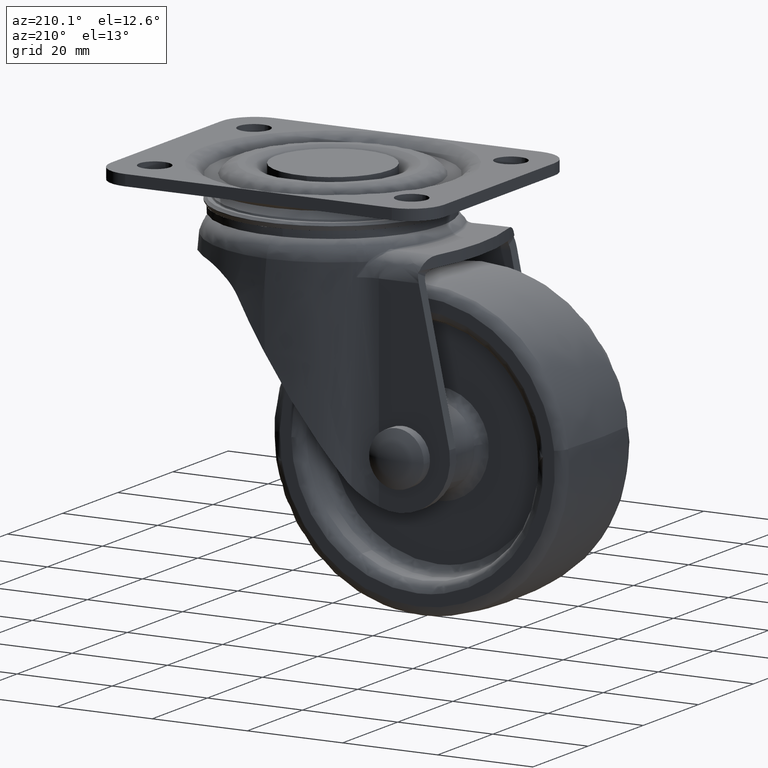
[diagram: clean part render]
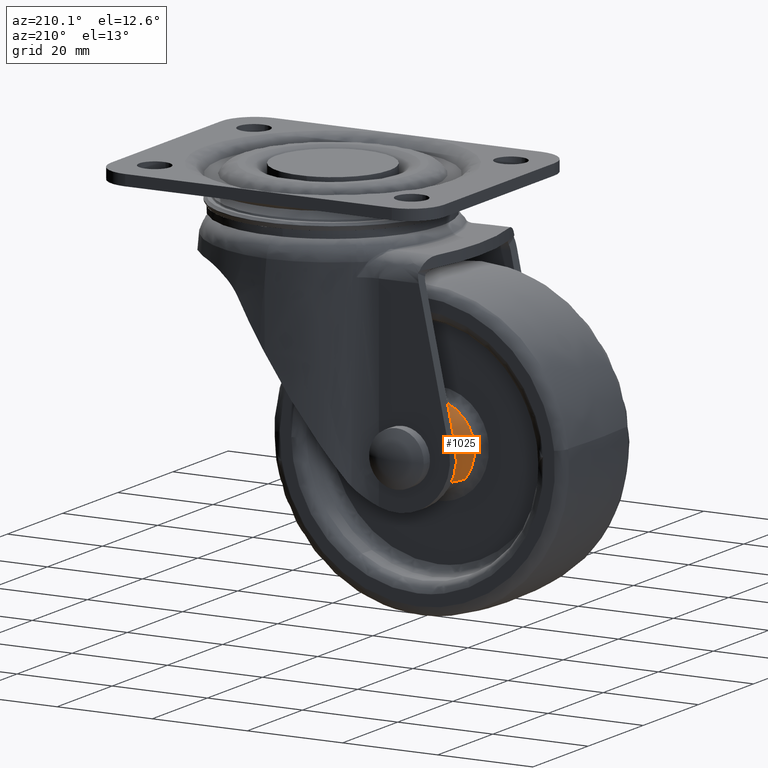
[diagram: same view with one face highlighted and labeled with its STEP entity id]
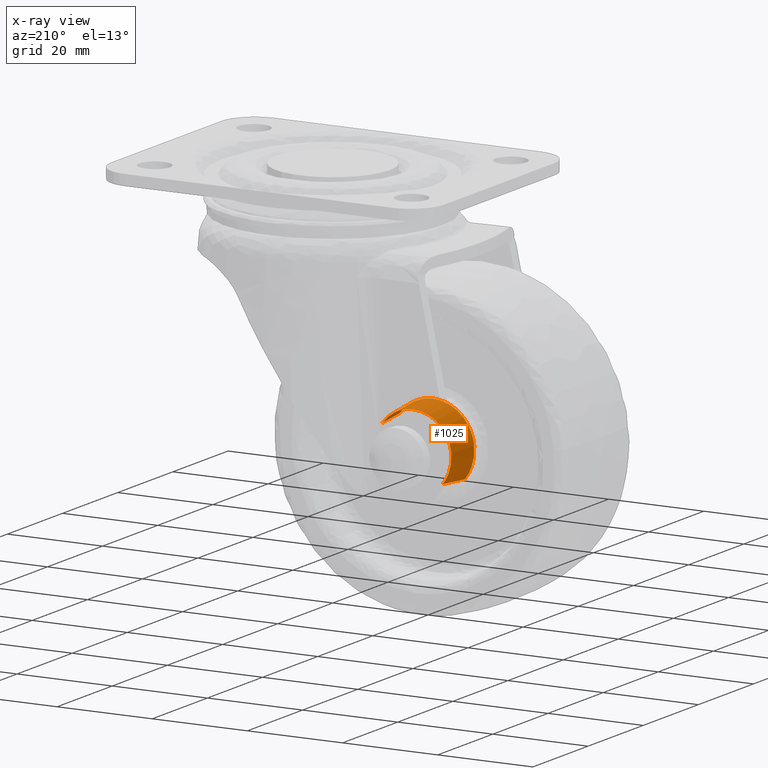
[diagram: x-ray of the same camera — body ghosted, the highlighted face saturated]
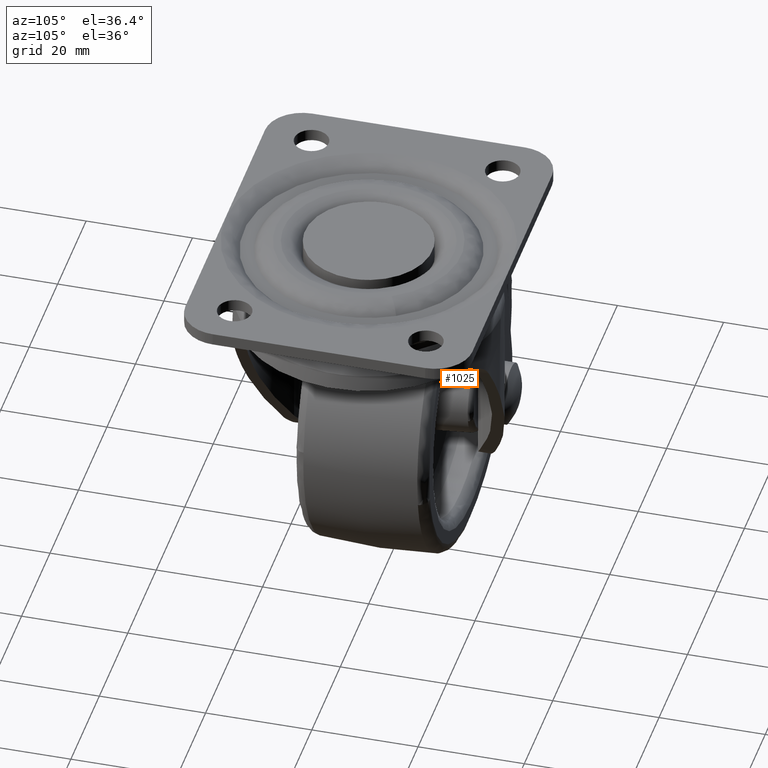
[diagram: same view with one face highlighted and labeled with its STEP entity id]
A machine part, auxiliary view. The second image highlights one B-rep face of the part: STEP entity #1025.
The next image is the same camera in x-ray: the body ghosted, the highlighted face saturated — about 0% of this face is hidden behind the body in this view.
A second angle (auxiliary view) of the same face is appended — the face is thin or edge-on in the first view.
In plain terms, the highlighted face is a freeform B-spline surface patch.
Its self-contained STEP definition (entity closure, byte-faithful):
#798=CARTESIAN_POINT('',(-31.697790052898831,6.825688710400733,-54.076082531766048));
#799=VERTEX_POINT('',#798);
#815=CARTESIAN_POINT('',(-31.209551488260502,14.087155742747459,-53.669605388458280));
#816=VERTEX_POINT('',#815);
#817=CARTESIAN_POINT('',(-31.209551488260502,14.087155742747459,-53.669605388458280));
#818=CARTESIAN_POINT('',(-31.697790052898831,6.825688710400733,-54.076082531766048));
#819=QUASI_UNIFORM_CURVE('',1,(#817,#818),.UNSPECIFIED.,.F.,.U.);
#820=EDGE_CURVE('',#816,#799,#819,.T.);
#852=CARTESIAN_POINT('',(-18.504946133438160,14.087155742747210,-43.693830958528203));
#853=VERTEX_POINT('',#852);
#869=CARTESIAN_POINT('',(-17.994255511214000,6.825697498085928,-43.315949130976378));
#870=VERTEX_POINT('',#869);
#871=CARTESIAN_POINT('',(-18.504946133438160,14.087155742747210,-43.693830958528203));
#872=CARTESIAN_POINT('',(-17.994255511214000,6.825697498085928,-43.315949130976378));
#873=QUASI_UNIFORM_CURVE('',1,(#871,#872),.UNSPECIFIED.,.F.,.U.);
#874=EDGE_CURVE('',#853,#870,#873,.T.);
#909=CARTESIAN_POINT('',(-18.517713302679759,14.268692419349980,-43.703278166808062));
#910=CARTESIAN_POINT('',(-23.314353135871716,14.268692419349986,-37.220991469487807));
#911=CARTESIAN_POINT('',(-29.796639833191950,14.268692419349980,-42.017631302679760));
#912=CARTESIAN_POINT('',(-36.278926530512187,14.268692419349986,-46.814271135871721));
#913=CARTESIAN_POINT('',(-31.482286697320241,14.268692419349980,-53.296557833191947));
#914=CARTESIAN_POINT('',(-31.345008926070133,14.268692419349980,-53.482078093490522));
#915=CARTESIAN_POINT('',(-31.197345524091851,14.268692419349982,-53.659443459830314));
#916=CARTESIAN_POINT('',(-17.981173017497920,6.639613617141791,-43.306259240588808));
#917=CARTESIAN_POINT('',(-23.174831776909109,6.639613617141792,-36.287432258086724));
#918=CARTESIAN_POINT('',(-30.193658759411189,6.639613617141791,-41.481091017497917));
#919=CARTESIAN_POINT('',(-37.212485741913270,6.639613617141792,-46.674749776909124));
#920=CARTESIAN_POINT('',(-32.018826982502077,6.639613617141791,-53.693576759411187));
#921=CARTESIAN_POINT('',(-31.870186700154445,6.639613617141790,-53.894452572158379));
#922=CARTESIAN_POINT('',(-31.710301166155830,6.639613617141791,-54.086498508593380));
#930=(BOUNDED_SURFACE()B_SPLINE_SURFACE(2,1,((#909,#916),(#910,#917),(#911,#918),(#912,#919),(#913,#920),(#914,#921),(#915,#922)),.UNSPECIFIED.,.F.,.F.,.U.)B_SPLINE_SURFACE_WITH_KNOTS((3,2,2,3),(2,2),(0.0,14.466721480091911,28.933442960183822,29.512111819387499),(0.0,7.658220607667399),.UNSPECIFIED.)GEOMETRIC_REPRESENTATION_ITEM()RATIONAL_B_SPLINE_SURFACE(((1.0,1.0),(0.707106781186548,0.707106781186548),(1.0,1.0),(0.707106781186548,0.707106781186548),(1.0,1.0),(0.988284271247462,0.988284271247462),(0.977505800795127,0.977505800795127)))REPRESENTATION_ITEM('')SURFACE());
#931=CARTESIAN_POINT('',(-33.671156657445543,6.825688710053716,-47.625249662512459));
#932=VERTEX_POINT('',#931);
#933=CARTESIAN_POINT('',(-33.671156657445536,6.825688710053717,-47.625249662512459));
#934=CARTESIAN_POINT('',(-33.715159348975547,6.825688710400971,-48.061476990642326));
#935=CARTESIAN_POINT('',(-33.715159348975547,6.825688710400970,-48.499918000000001));
#936=CARTESIAN_POINT('',(-33.715159348975547,6.825688710400970,-51.652926628221927));
#937=CARTESIAN_POINT('',(-31.697790052898835,6.825688710400733,-54.076082531766048));
#945=(BOUNDED_CURVE()B_SPLINE_CURVE(2,(#933,#934,#935,#936,#937),.UNSPECIFIED.,.F.,.U.)B_SPLINE_CURVE_WITH_KNOTS((3,2,3),(0.732576558917092,0.750000000000000,0.861240101649438),.UNSPECIFIED.)CURVE()GEOMETRIC_REPRESENTATION_ITEM()RATIONAL_B_SPLINE_CURVE((0.962019632128780,0.979587169033682,1.0,0.869674114267042,0.855327946745982))REPRESENTATION_ITEM(''));
#946=EDGE_CURVE('',#932,#799,#945,.T.);
#947=ORIENTED_EDGE('',*,*,#946,.F.);
#948=CARTESIAN_POINT('',(-25.0,6.825688710400970,-39.784758651024461));
#949=VERTEX_POINT('',#948);
#950=CARTESIAN_POINT('',(-25.0,6.825688710400970,-39.784758651024461));
#951=CARTESIAN_POINT('',(-32.880278403315941,6.825688710400971,-39.784758651024468));
#952=CARTESIAN_POINT('',(-33.671156657445536,6.825688710053717,-47.625249662512459));
#960=(BOUNDED_CURVE()B_SPLINE_CURVE(2,(#950,#951,#952),.UNSPECIFIED.,.F.,.U.)B_SPLINE_CURVE_WITH_KNOTS((3,3),(0.500000000000000,0.732576558917093),.UNSPECIFIED.)CURVE()GEOMETRIC_REPRESENTATION_ITEM()RATIONAL_B_SPLINE_CURVE((1.0,0.727519612152865,0.962019632128781))REPRESENTATION_ITEM(''));
#961=EDGE_CURVE('',#949,#932,#960,.T.);
#962=ORIENTED_EDGE('',*,*,#961,.F.);
#963=CARTESIAN_POINT('',(-17.994255511213996,6.825697498085928,-43.315949130976378));
#964=CARTESIAN_POINT('',(-20.607193652534232,6.825693104243448,-39.784758879681668));
#965=CARTESIAN_POINT('',(-25.0,6.825688710400970,-39.784758651024461));
#973=(BOUNDED_CURVE()B_SPLINE_CURVE(2,(#963,#964,#965),.UNSPECIFIED.,.F.,.U.)B_SPLINE_CURVE_WITH_KNOTS((3,3),(0.352573986803710,0.500000000000000),.UNSPECIFIED.)CURVE()GEOMETRIC_REPRESENTATION_ITEM()RATIONAL_B_SPLINE_CURVE((0.858267106908366,0.827279681832416,1.0))REPRESENTATION_ITEM(''));
#974=EDGE_CURVE('',#870,#949,#973,.T.);
#975=ORIENTED_EDGE('',*,*,#974,.F.);
#976=ORIENTED_EDGE('',*,*,#874,.F.);
#977=CARTESIAN_POINT('',(-25.0,14.087155742747660,-40.420054301908152));
#978=VERTEX_POINT('',#977);
#979=CARTESIAN_POINT('',(-18.504946133438157,14.087155742747205,-43.693830958528196));
#980=CARTESIAN_POINT('',(-20.927413427676733,14.087155742747653,-40.420054301908159));
#981=CARTESIAN_POINT('',(-25.0,14.087155742747660,-40.420054301908152));
#989=(BOUNDED_CURVE()B_SPLINE_CURVE(2,(#979,#980,#981),.UNSPECIFIED.,.F.,.U.)B_SPLINE_CURVE_WITH_KNOTS((3,3),(0.352574117710215,0.500000000000000),.UNSPECIFIED.)CURVE()GEOMETRIC_REPRESENTATION_ITEM()RATIONAL_B_SPLINE_CURVE((0.858267051878136,0.827279835198927,1.0))REPRESENTATION_ITEM(''));
#990=EDGE_CURVE('',#853,#978,#989,.T.);
#991=ORIENTED_EDGE('',*,*,#990,.T.);
#992=CARTESIAN_POINT('',(-33.039068603435616,14.087155743208090,-47.689009023389701));
#993=VERTEX_POINT('',#992);
#994=CARTESIAN_POINT('',(-25.0,14.087155742747660,-40.420054301908152));
#995=CARTESIAN_POINT('',(-32.305841792535631,14.087155742747653,-40.420054301908152));
#996=CARTESIAN_POINT('',(-33.039068603435624,14.087155743208097,-47.689009023389701));
#1004=(BOUNDED_CURVE()B_SPLINE_CURVE(2,(#994,#995,#996),.UNSPECIFIED.,.F.,.U.)B_SPLINE_CURVE_WITH_KNOTS((3,3),(0.500000000000000,0.732576558913222),.UNSPECIFIED.)CURVE()GEOMETRIC_REPRESENTATION_ITEM()RATIONAL_B_SPLINE_CURVE((1.0,0.727519612157399,0.962019632120977))REPRESENTATION_ITEM(''));
#1005=EDGE_CURVE('',#978,#993,#1004,.T.);
#1006=ORIENTED_EDGE('',*,*,#1005,.T.);
#1007=CARTESIAN_POINT('',(-33.039068603435616,14.087155743208095,-47.689009023389701));
#1008=CARTESIAN_POINT('',(-33.079863698091856,14.087155742747653,-48.093437354699610));
#1009=CARTESIAN_POINT('',(-33.079863698091849,14.087155742747660,-48.499918000000001));
#1010=CARTESIAN_POINT('',(-33.079863698091842,14.087155742747655,-51.423086577283065));
#1011=CARTESIAN_POINT('',(-31.209551488260498,14.087155742747461,-53.669605388458287));
#1019=(BOUNDED_CURVE()B_SPLINE_CURVE(2,(#1007,#1008,#1009,#1010,#1011),.UNSPECIFIED.,.F.,.U.)B_SPLINE_CURVE_WITH_KNOTS((3,2,3),(0.732576558913221,0.750000000000000,0.861240101649435),.UNSPECIFIED.)CURVE()GEOMETRIC_REPRESENTATION_ITEM()RATIONAL_B_SPLINE_CURVE((0.962019632120975,0.979587169029147,1.0,0.869674114267045,0.855327946745983))REPRESENTATION_ITEM(''));
#1020=EDGE_CURVE('',#993,#816,#1019,.T.);
#1021=ORIENTED_EDGE('',*,*,#1020,.T.);
#1022=ORIENTED_EDGE('',*,*,#820,.T.);
#1023=EDGE_LOOP('',(#947,#962,#975,#976,#991,#1006,#1021,#1022));
#1024=FACE_OUTER_BOUND('',#1023,.T.);
#1025=ADVANCED_FACE('',(#1024),#930,.T.);